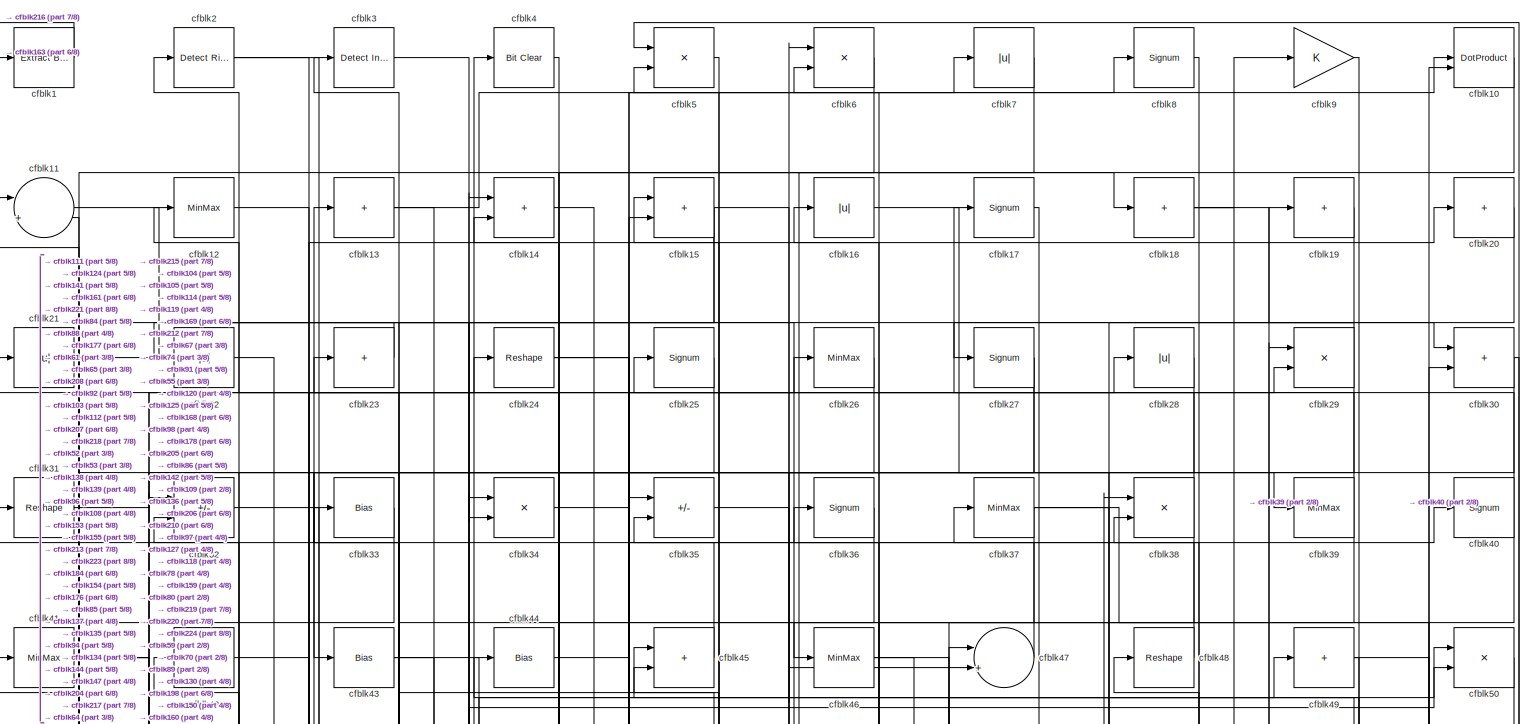
[diagram: root canvas - part 1/8, full width, top band]
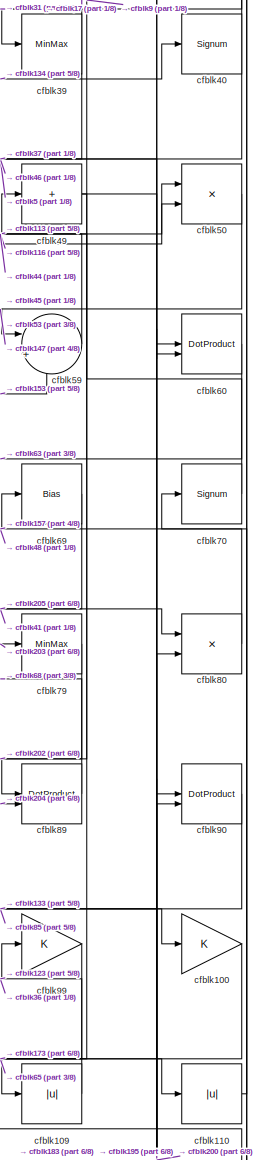
[diagram: root canvas - part 2/8, top right region]
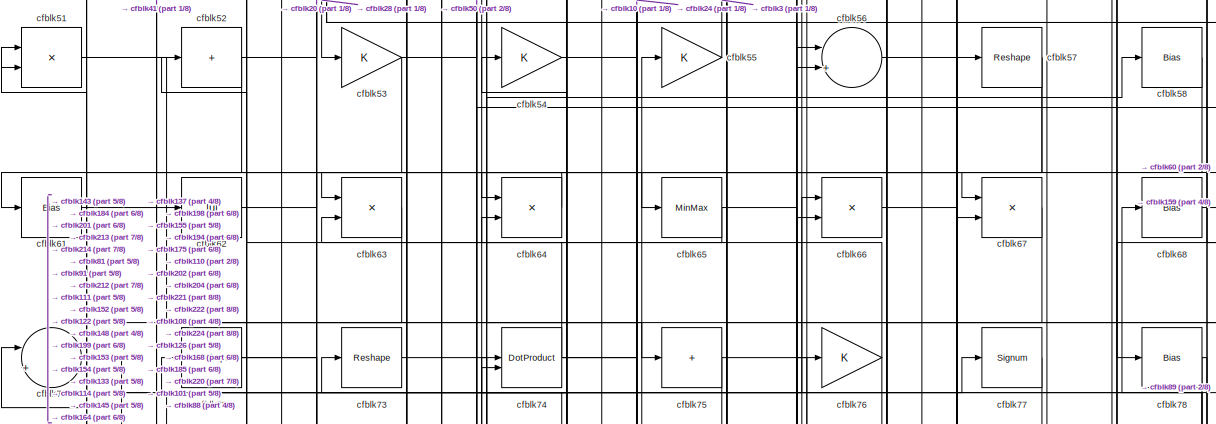
[diagram: root canvas - part 3/8, full width, top band]
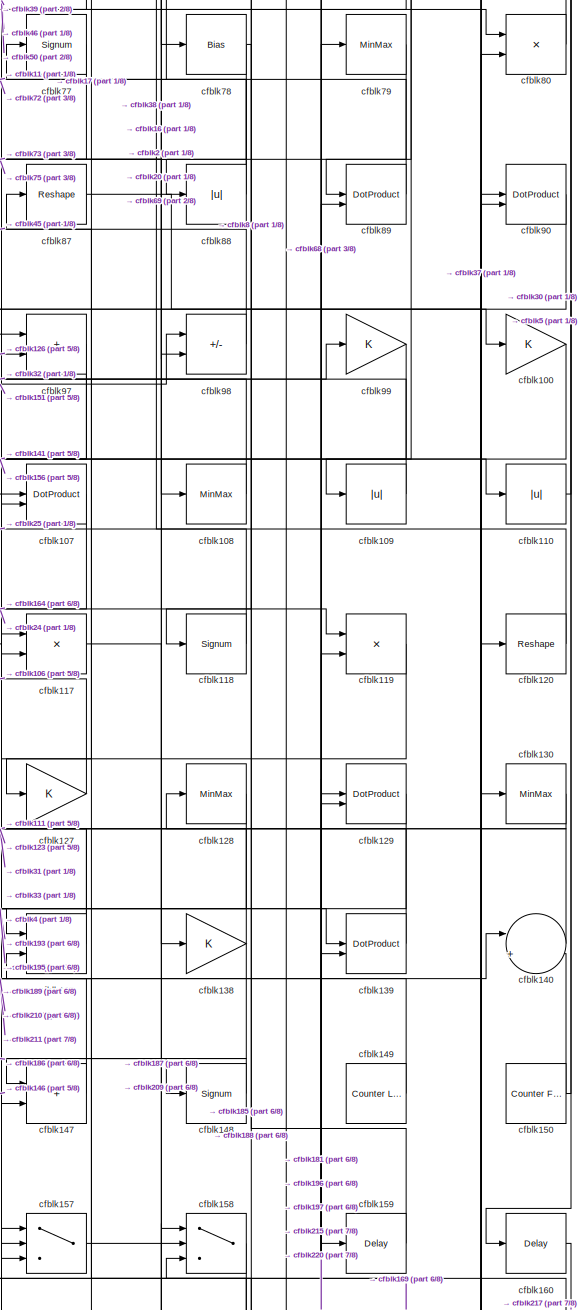
[diagram: root canvas - part 4/8, middle right region]
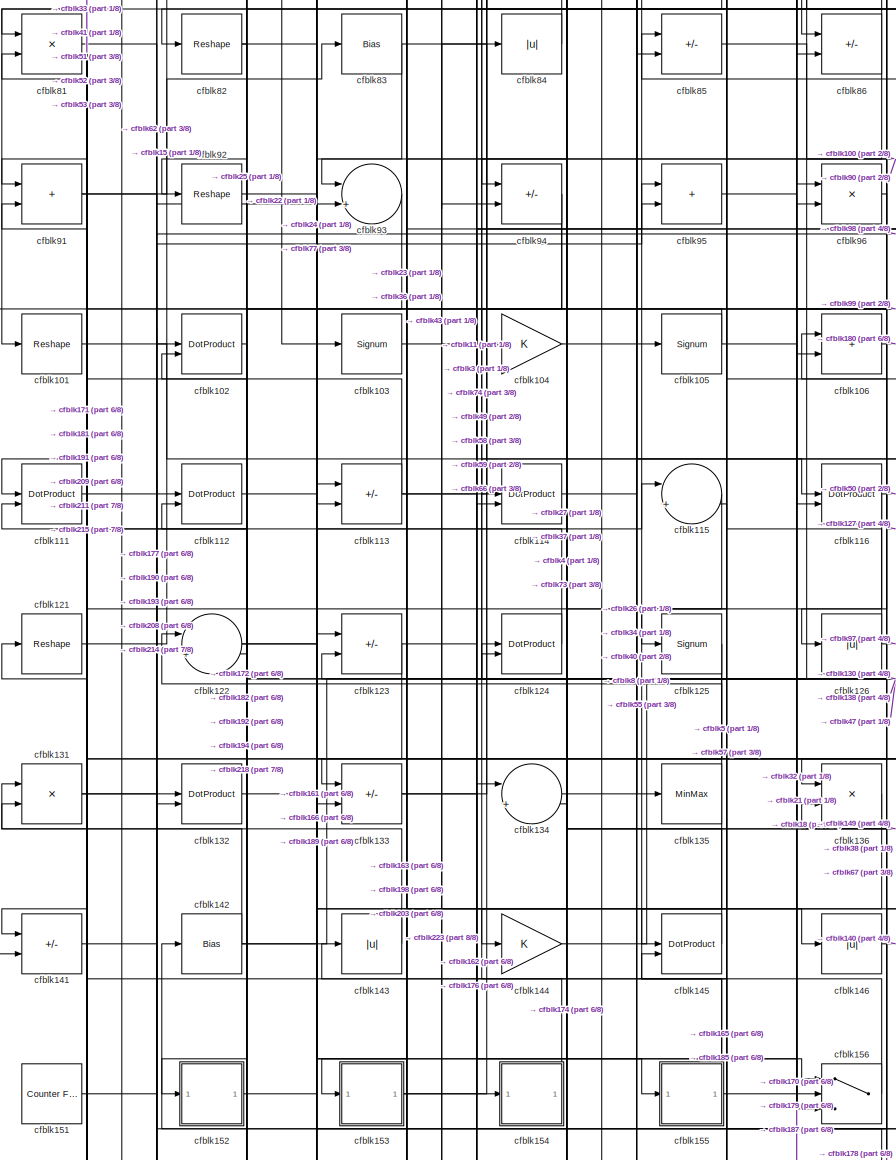
[diagram: root canvas - part 5/8, middle left region]
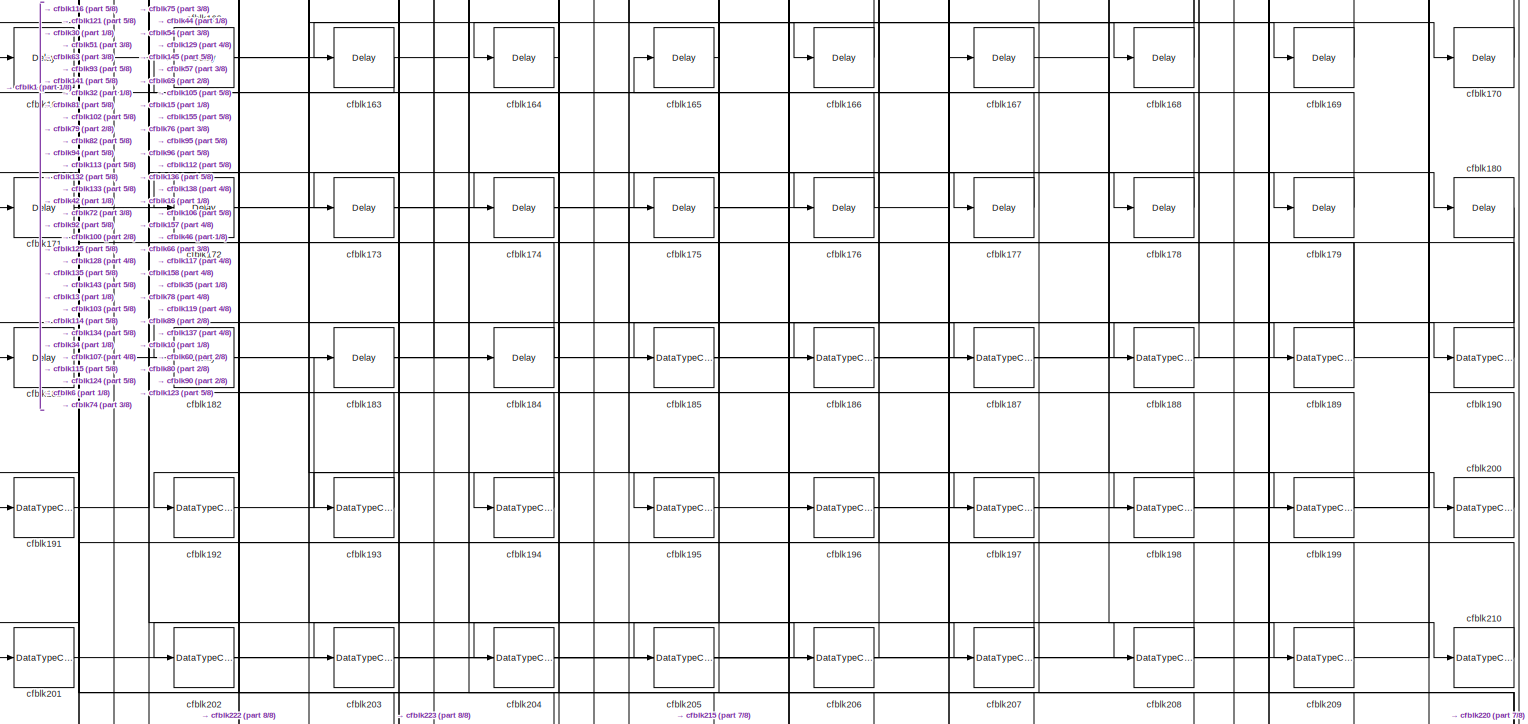
[diagram: root canvas - part 6/8, full width, bottom band]
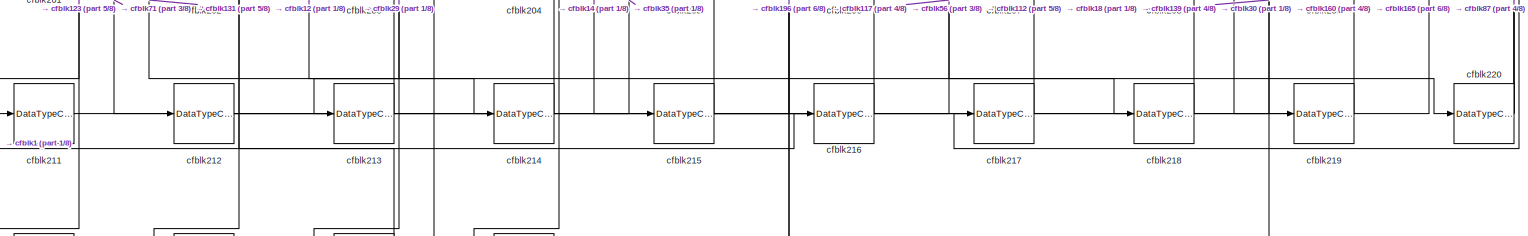
[diagram: root canvas - part 7/8, full width, bottom band]
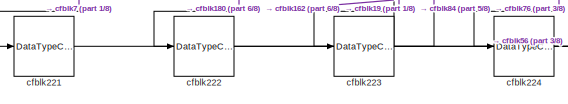
[diagram: root canvas - part 8/8, bottom left region]
MODEL slx_e23add30b6ca
KIND model
CONFIG AbsTol = auto
CONFIG EnableMultiTasking = off
CONFIG FixedStep = auto
CONFIG MaxStep = auto
CONFIG MinStep = auto
CONFIG RelTol = 1e-3
CONFIG SampleTimeConstraint = Unconstrained
CONFIG SolverName = VariableStepAuto
CONFIG StartTime = 0.0
CONFIG StopTime = 10.0
BLOCK [Reference] cfblk1  REF=simulink/Logic and Bit
Operations/Extract Bits
  LibrarySourceBlock = hdlsllib/Logic and Bit\nOperations/Extract Bits
  SourceBlock = simulink/Logic and Bit\nOperations/Extract Bits
  SourceType = Extract Bits
BLOCK [DotProduct] cfblk10
  OutDataTypeStr = Inherit: Inherit via internal rule
BLOCK [Gain] cfblk100
BLOCK [Reshape] cfblk101
BLOCK [DotProduct] cfblk102
  OutDataTypeStr = Inherit: Inherit via internal rule
BLOCK [Signum] cfblk103
BLOCK [Gain] cfblk104
BLOCK [Signum] cfblk105
BLOCK [Sum] cfblk106
  IconShape = rectangular
BLOCK [DotProduct] cfblk107
  OutDataTypeStr = Inherit: Inherit via internal rule
BLOCK [MinMax] cfblk108
BLOCK [Abs] cfblk109
  SaturateOnIntegerOverflow = off
BLOCK [Sum] cfblk11
  Inputs = |++
BLOCK [Abs] cfblk110
  SaturateOnIntegerOverflow = off
BLOCK [DotProduct] cfblk111
  OutDataTypeStr = Inherit: Inherit via internal rule
BLOCK [DotProduct] cfblk112
  OutDataTypeStr = Inherit: Inherit via internal rule
BLOCK [Sum] cfblk113
  IconShape = rectangular
  Inputs = +-
BLOCK [DotProduct] cfblk114
  OutDataTypeStr = Inherit: Inherit via internal rule
BLOCK [Sum] cfblk115
  Inputs = |++
BLOCK [DotProduct] cfblk116
  OutDataTypeStr = Inherit: Inherit via internal rule
BLOCK [Product] cfblk117
  Inputs = */
  RndMeth = Zero
  SaturateOnIntegerOverflow = on
BLOCK [Signum] cfblk118
BLOCK [Product] cfblk119
  Inputs = */
  RndMeth = Zero
  SaturateOnIntegerOverflow = on
BLOCK [MinMax] cfblk12
BLOCK [Reshape] cfblk120
BLOCK [Reshape] cfblk121
BLOCK [Sum] cfblk122
  Inputs = |++
BLOCK [Sum] cfblk123
  IconShape = rectangular
  Inputs = +-
BLOCK [DotProduct] cfblk124
  OutDataTypeStr = Inherit: Inherit via internal rule
BLOCK [Signum] cfblk125
BLOCK [Abs] cfblk126
  SaturateOnIntegerOverflow = off
BLOCK [Gain] cfblk127
BLOCK [MinMax] cfblk128
BLOCK [DotProduct] cfblk129
  OutDataTypeStr = Inherit: Inherit via internal rule
BLOCK [Sum] cfblk13
  IconShape = rectangular
  Inputs = +
BLOCK [MinMax] cfblk130
BLOCK [Product] cfblk131
  Inputs = */
  RndMeth = Zero
  SaturateOnIntegerOverflow = on
BLOCK [DotProduct] cfblk132
  OutDataTypeStr = Inherit: Inherit via internal rule
BLOCK [Sum] cfblk133
  IconShape = rectangular
  Inputs = +-
BLOCK [Sum] cfblk134
  Inputs = |++
BLOCK [MinMax] cfblk135
BLOCK [Product] cfblk136
  Inputs = */
  RndMeth = Zero
  SaturateOnIntegerOverflow = on
BLOCK [Sum] cfblk137
  IconShape = rectangular
BLOCK [Gain] cfblk138
BLOCK [DotProduct] cfblk139
  OutDataTypeStr = Inherit: Inherit via internal rule
BLOCK [Sum] cfblk14
  IconShape = rectangular
BLOCK [Sum] cfblk140
  Inputs = |++
BLOCK [Sum] cfblk141
  IconShape = rectangular
  Inputs = +-
BLOCK [Bias] cfblk142
  Bias = 0.0
  SaturateOnIntegerOverflow = off
BLOCK [Abs] cfblk143
  SaturateOnIntegerOverflow = off
BLOCK [Gain] cfblk144
BLOCK [DotProduct] cfblk145
  OutDataTypeStr = Inherit: Inherit via internal rule
BLOCK [Abs] cfblk146
  SaturateOnIntegerOverflow = off
BLOCK [Sum] cfblk147
  IconShape = rectangular
BLOCK [Signum] cfblk148
BLOCK [Reference] cfblk149  REF=hdlsllib/Sources/Counter
Limited
  SourceBlock = hdlsllib/Sources/Counter\nLimited
  SourceType = Counter Limited
BLOCK [Sum] cfblk15
  IconShape = rectangular
BLOCK [Reference] cfblk150  REF=hdlsllib/Sources/Counter
Free-Running
  SourceBlock = hdlsllib/Sources/Counter\nFree-Running
  SourceType = Counter Free-Running
BLOCK [Reference] cfblk151  REF=hdlsllib/Sources/Counter
Free-Running
  SourceBlock = hdlsllib/Sources/Counter\nFree-Running
  SourceType = Counter Free-Running
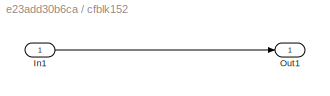
BLOCK [SubSystem] cfblk152
  LibrarySourceBlock = hdlsllib/Ports &\nSubsystems/Subsystem
BLOCK [Inport] cfblk152/In1
BLOCK [Outport] cfblk152/Out1
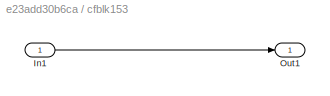
BLOCK [SubSystem] cfblk153
  LibrarySourceBlock = hdlsllib/Ports &\nSubsystems/Subsystem
BLOCK [Inport] cfblk153/In1
BLOCK [Outport] cfblk153/Out1
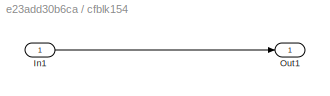
BLOCK [SubSystem] cfblk154
  LibrarySourceBlock = hdlsllib/Ports &\nSubsystems/Subsystem
BLOCK [Inport] cfblk154/In1
BLOCK [Outport] cfblk154/Out1
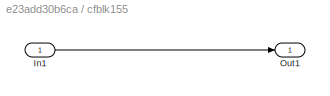
BLOCK [SubSystem] cfblk155
  LibrarySourceBlock = hdlsllib/Ports &\nSubsystems/Subsystem
BLOCK [Inport] cfblk155/In1
BLOCK [Outport] cfblk155/Out1
BLOCK [Switch] cfblk156
  InputSameDT = off
  SaturateOnIntegerOverflow = off
BLOCK [Switch] cfblk157
  InputSameDT = off
  SaturateOnIntegerOverflow = off
BLOCK [Switch] cfblk158
  InputSameDT = off
  SaturateOnIntegerOverflow = off
BLOCK [Delay] cfblk159
  InputPortMap = u0
  SampleTime = 1
BLOCK [Abs] cfblk16
  SaturateOnIntegerOverflow = off
BLOCK [Delay] cfblk160
  InputPortMap = u0
  SampleTime = 1
BLOCK [Delay] cfblk161
  InputPortMap = u0
  SampleTime = 1
BLOCK [Delay] cfblk162
  InputPortMap = u0
  SampleTime = 1
BLOCK [Delay] cfblk163
  InputPortMap = u0
  SampleTime = 1
BLOCK [Delay] cfblk164
  InputPortMap = u0
  SampleTime = 1
BLOCK [Delay] cfblk165
  InputPortMap = u0
  SampleTime = 1
BLOCK [Delay] cfblk166
  InputPortMap = u0
  SampleTime = 1
BLOCK [Delay] cfblk167
  InputPortMap = u0
  SampleTime = 1
BLOCK [Delay] cfblk168
  InputPortMap = u0
  SampleTime = 1
BLOCK [Delay] cfblk169
  InputPortMap = u0
  SampleTime = 1
BLOCK [Signum] cfblk17
BLOCK [Delay] cfblk170
  InputPortMap = u0
  SampleTime = 1
BLOCK [Delay] cfblk171
  InputPortMap = u0
  SampleTime = 1
BLOCK [Delay] cfblk172
  InputPortMap = u0
  SampleTime = 1
BLOCK [Delay] cfblk173
  InputPortMap = u0
  SampleTime = 1
BLOCK [Delay] cfblk174
  InputPortMap = u0
  SampleTime = 1
BLOCK [Delay] cfblk175
  InputPortMap = u0
  SampleTime = 1
BLOCK [Delay] cfblk176
  InputPortMap = u0
  SampleTime = 1
BLOCK [Delay] cfblk177
  InputPortMap = u0
  SampleTime = 1
BLOCK [Delay] cfblk178
  InputPortMap = u0
  SampleTime = 1
BLOCK [Delay] cfblk179
  InputPortMap = u0
  SampleTime = 1
BLOCK [Sum] cfblk18
  IconShape = rectangular
  Inputs = +
BLOCK [Delay] cfblk180
  InputPortMap = u0
  SampleTime = 1
BLOCK [Delay] cfblk181
  InputPortMap = u0
  SampleTime = 1
BLOCK [Delay] cfblk182
  InputPortMap = u0
  SampleTime = 1
BLOCK [Delay] cfblk183
  InputPortMap = u0
  SampleTime = 1
BLOCK [Delay] cfblk184
  InputPortMap = u0
  SampleTime = 1
BLOCK [DataTypeConversion] cfblk185
  RndMeth = Floor
  SaturateOnIntegerOverflow = off
BLOCK [DataTypeConversion] cfblk186
  OutDataTypeStr = uint8
  RndMeth = Floor
  SaturateOnIntegerOverflow = off
BLOCK [DataTypeConversion] cfblk187
  OutDataTypeStr = uint8
  RndMeth = Floor
  SaturateOnIntegerOverflow = off
BLOCK [DataTypeConversion] cfblk188
  OutDataTypeStr = uint8
  RndMeth = Floor
  SaturateOnIntegerOverflow = off
BLOCK [DataTypeConversion] cfblk189
  RndMeth = Floor
  SaturateOnIntegerOverflow = off
BLOCK [Sum] cfblk19
  IconShape = rectangular
  Inputs = +
BLOCK [DataTypeConversion] cfblk190
  OutDataTypeStr = uint8
  RndMeth = Floor
  SaturateOnIntegerOverflow = off
BLOCK [DataTypeConversion] cfblk191
  OutDataTypeStr = uint8
  RndMeth = Floor
  SaturateOnIntegerOverflow = off
BLOCK [DataTypeConversion] cfblk192
  OutDataTypeStr = uint8
  RndMeth = Floor
  SaturateOnIntegerOverflow = off
BLOCK [DataTypeConversion] cfblk193
  OutDataTypeStr = uint8
  RndMeth = Floor
  SaturateOnIntegerOverflow = off
BLOCK [DataTypeConversion] cfblk194
  OutDataTypeStr = uint8
  RndMeth = Floor
  SaturateOnIntegerOverflow = off
BLOCK [DataTypeConversion] cfblk195
  OutDataTypeStr = uint8
  RndMeth = Floor
  SaturateOnIntegerOverflow = off
BLOCK [DataTypeConversion] cfblk196
  OutDataTypeStr = uint8
  RndMeth = Floor
  SaturateOnIntegerOverflow = off
BLOCK [DataTypeConversion] cfblk197
  OutDataTypeStr = uint8
  RndMeth = Floor
  SaturateOnIntegerOverflow = off
BLOCK [DataTypeConversion] cfblk198
  RndMeth = Floor
  SaturateOnIntegerOverflow = off
BLOCK [DataTypeConversion] cfblk199
  OutDataTypeStr = uint8
  RndMeth = Floor
  SaturateOnIntegerOverflow = off
BLOCK [Reference] cfblk2  REF=hdlsllib/Logic and Bit
Operations/Detect Rise
Positive
  SourceBlock = hdlsllib/Logic and Bit\nOperations/Detect Rise\nPositive
  SourceType = Detect Rise Positive
BLOCK [Sum] cfblk20
  IconShape = rectangular
  Inputs = +
BLOCK [DataTypeConversion] cfblk200
  OutDataTypeStr = uint8
  RndMeth = Floor
  SaturateOnIntegerOverflow = off
BLOCK [DataTypeConversion] cfblk201
  OutDataTypeStr = uint8
  RndMeth = Floor
  SaturateOnIntegerOverflow = off
BLOCK [DataTypeConversion] cfblk202
  RndMeth = Floor
  SaturateOnIntegerOverflow = off
BLOCK [DataTypeConversion] cfblk203
  OutDataTypeStr = uint8
  RndMeth = Floor
  SaturateOnIntegerOverflow = off
BLOCK [DataTypeConversion] cfblk204
  RndMeth = Floor
  SaturateOnIntegerOverflow = off
BLOCK [DataTypeConversion] cfblk205
  OutDataTypeStr = uint8
  RndMeth = Floor
  SaturateOnIntegerOverflow = off
BLOCK [DataTypeConversion] cfblk206
  OutDataTypeStr = uint8
  RndMeth = Floor
  SaturateOnIntegerOverflow = off
BLOCK [DataTypeConversion] cfblk207
  OutDataTypeStr = uint8
  RndMeth = Floor
  SaturateOnIntegerOverflow = off
BLOCK [DataTypeConversion] cfblk208
  OutDataTypeStr = uint8
  RndMeth = Floor
  SaturateOnIntegerOverflow = off
BLOCK [DataTypeConversion] cfblk209
  OutDataTypeStr = uint8
  RndMeth = Floor
  SaturateOnIntegerOverflow = off
BLOCK [Abs] cfblk21
  SaturateOnIntegerOverflow = off
BLOCK [DataTypeConversion] cfblk210
  OutDataTypeStr = uint8
  RndMeth = Floor
  SaturateOnIntegerOverflow = off
BLOCK [DataTypeConversion] cfblk211
  OutDataTypeStr = uint8
  RndMeth = Floor
  SaturateOnIntegerOverflow = off
BLOCK [DataTypeConversion] cfblk212
  RndMeth = Floor
  SaturateOnIntegerOverflow = off
BLOCK [DataTypeConversion] cfblk213
  OutDataTypeStr = uint8
  RndMeth = Floor
  SaturateOnIntegerOverflow = off
BLOCK [DataTypeConversion] cfblk214
  OutDataTypeStr = uint8
  RndMeth = Floor
  SaturateOnIntegerOverflow = off
BLOCK [DataTypeConversion] cfblk215
  RndMeth = Floor
  SaturateOnIntegerOverflow = off
BLOCK [DataTypeConversion] cfblk216
  OutDataTypeStr = uint8
  RndMeth = Floor
  SaturateOnIntegerOverflow = off
BLOCK [DataTypeConversion] cfblk217
  OutDataTypeStr = uint8
  RndMeth = Floor
  SaturateOnIntegerOverflow = off
BLOCK [DataTypeConversion] cfblk218
  OutDataTypeStr = uint8
  RndMeth = Floor
  SaturateOnIntegerOverflow = off
BLOCK [DataTypeConversion] cfblk219
  OutDataTypeStr = uint8
  RndMeth = Floor
  SaturateOnIntegerOverflow = off
BLOCK [Abs] cfblk22
  SaturateOnIntegerOverflow = off
BLOCK [DataTypeConversion] cfblk220
  RndMeth = Floor
  SaturateOnIntegerOverflow = off
BLOCK [DataTypeConversion] cfblk221
  OutDataTypeStr = uint8
  RndMeth = Floor
  SaturateOnIntegerOverflow = off
BLOCK [DataTypeConversion] cfblk222
  OutDataTypeStr = uint8
  RndMeth = Floor
  SaturateOnIntegerOverflow = off
BLOCK [DataTypeConversion] cfblk223
  RndMeth = Floor
  SaturateOnIntegerOverflow = off
BLOCK [DataTypeConversion] cfblk224
  OutDataTypeStr = uint8
  RndMeth = Floor
  SaturateOnIntegerOverflow = off
BLOCK [Sum] cfblk23
  IconShape = rectangular
  Inputs = +
BLOCK [Reshape] cfblk24
BLOCK [Signum] cfblk25
BLOCK [MinMax] cfblk26
BLOCK [Signum] cfblk27
BLOCK [Abs] cfblk28
  SaturateOnIntegerOverflow = off
BLOCK [Product] cfblk29
  Inputs = */
  RndMeth = Zero
  SaturateOnIntegerOverflow = on
BLOCK [Reference] cfblk3  REF=simulink/Logic and Bit
Operations/Detect
Increase
  LibrarySourceBlock = hdlsllib/Logic and Bit\nOperations/Detect\nIncrease
  SourceBlock = simulink/Logic and Bit\nOperations/Detect\nIncrease
  SourceType = Detect Increase
BLOCK [Sum] cfblk30
  IconShape = rectangular
BLOCK [Reshape] cfblk31
BLOCK [Sum] cfblk32
  IconShape = rectangular
  Inputs = +-
BLOCK [Bias] cfblk33
  Bias = 0.0
  SaturateOnIntegerOverflow = off
BLOCK [Product] cfblk34
  Inputs = */
  RndMeth = Zero
  SaturateOnIntegerOverflow = on
BLOCK [Sum] cfblk35
  IconShape = rectangular
  Inputs = +-
BLOCK [Signum] cfblk36
BLOCK [MinMax] cfblk37
BLOCK [Product] cfblk38
  Inputs = */
  RndMeth = Zero
  SaturateOnIntegerOverflow = on
BLOCK [MinMax] cfblk39
BLOCK [Reference] cfblk4  REF=simulink/Logic and Bit
Operations/Bit Clear
  LibrarySourceBlock = hdlsllib/Logic and Bit\nOperations/Bit Clear
  SourceBlock = simulink/Logic and Bit\nOperations/Bit Clear
  SourceType = Bit Clear
BLOCK [Signum] cfblk40
BLOCK [MinMax] cfblk41
BLOCK [Sum] cfblk42
  IconShape = rectangular
  Inputs = +
BLOCK [Bias] cfblk43
  Bias = 0.0
  SaturateOnIntegerOverflow = off
BLOCK [Bias] cfblk44
  Bias = 0.0
  SaturateOnIntegerOverflow = off
BLOCK [Sum] cfblk45
  IconShape = rectangular
BLOCK [MinMax] cfblk46
BLOCK [Sum] cfblk47
  Inputs = |++
BLOCK [Reshape] cfblk48
BLOCK [Sum] cfblk49
  IconShape = rectangular
  Inputs = +
BLOCK [Product] cfblk5
  Inputs = */
  RndMeth = Zero
  SaturateOnIntegerOverflow = on
BLOCK [Product] cfblk50
  Inputs = */
  RndMeth = Zero
  SaturateOnIntegerOverflow = on
BLOCK [Product] cfblk51
  Inputs = */
  RndMeth = Zero
  SaturateOnIntegerOverflow = on
BLOCK [Sum] cfblk52
  IconShape = rectangular
  Inputs = +
BLOCK [Gain] cfblk53
BLOCK [Gain] cfblk54
BLOCK [Gain] cfblk55
BLOCK [Sum] cfblk56
  Inputs = |++
BLOCK [Reshape] cfblk57
BLOCK [Bias] cfblk58
  Bias = 0.0
  SaturateOnIntegerOverflow = off
BLOCK [Sum] cfblk59
  Inputs = |++
BLOCK [Product] cfblk6
  Inputs = */
  RndMeth = Zero
  SaturateOnIntegerOverflow = on
BLOCK [DotProduct] cfblk60
  OutDataTypeStr = Inherit: Inherit via internal rule
BLOCK [Bias] cfblk61
  Bias = 0.0
  SaturateOnIntegerOverflow = off
BLOCK [Abs] cfblk62
  SaturateOnIntegerOverflow = off
BLOCK [Product] cfblk63
  Inputs = */
  RndMeth = Zero
  SaturateOnIntegerOverflow = on
BLOCK [Product] cfblk64
  Inputs = */
  RndMeth = Zero
  SaturateOnIntegerOverflow = on
BLOCK [MinMax] cfblk65
BLOCK [Product] cfblk66
  Inputs = */
  RndMeth = Zero
  SaturateOnIntegerOverflow = on
BLOCK [Product] cfblk67
  Inputs = */
  RndMeth = Zero
  SaturateOnIntegerOverflow = on
BLOCK [Bias] cfblk68
  Bias = 0.0
  SaturateOnIntegerOverflow = off
BLOCK [Bias] cfblk69
  Bias = 0.0
  SaturateOnIntegerOverflow = off
BLOCK [Abs] cfblk7
  SaturateOnIntegerOverflow = off
BLOCK [Signum] cfblk70
BLOCK [Sum] cfblk71
  Inputs = |++
BLOCK [Reshape] cfblk72
BLOCK [Reshape] cfblk73
BLOCK [DotProduct] cfblk74
  OutDataTypeStr = Inherit: Inherit via internal rule
BLOCK [Sum] cfblk75
  IconShape = rectangular
  Inputs = +
BLOCK [Gain] cfblk76
BLOCK [Signum] cfblk77
BLOCK [Bias] cfblk78
  Bias = 0.0
  SaturateOnIntegerOverflow = off
BLOCK [MinMax] cfblk79
BLOCK [Signum] cfblk8
BLOCK [Product] cfblk80
  Inputs = */
  RndMeth = Zero
  SaturateOnIntegerOverflow = on
BLOCK [Product] cfblk81
  Inputs = */
  RndMeth = Zero
  SaturateOnIntegerOverflow = on
BLOCK [Reshape] cfblk82
BLOCK [Bias] cfblk83
  Bias = 0.0
  SaturateOnIntegerOverflow = off
BLOCK [Abs] cfblk84
  SaturateOnIntegerOverflow = off
BLOCK [Sum] cfblk85
  IconShape = rectangular
  Inputs = +-
BLOCK [Sum] cfblk86
  IconShape = rectangular
  Inputs = +-
BLOCK [Reshape] cfblk87
BLOCK [Abs] cfblk88
  SaturateOnIntegerOverflow = off
BLOCK [DotProduct] cfblk89
  OutDataTypeStr = Inherit: Inherit via internal rule
BLOCK [Gain] cfblk9
BLOCK [DotProduct] cfblk90
  OutDataTypeStr = Inherit: Inherit via internal rule
BLOCK [Sum] cfblk91
  IconShape = rectangular
BLOCK [Reshape] cfblk92
BLOCK [Sum] cfblk93
  Inputs = |++
BLOCK [Sum] cfblk94
  IconShape = rectangular
  Inputs = +-
BLOCK [Sum] cfblk95
  IconShape = rectangular
BLOCK [Product] cfblk96
  Inputs = */
  RndMeth = Zero
  SaturateOnIntegerOverflow = on
BLOCK [Sum] cfblk97
  IconShape = rectangular
BLOCK [Sum] cfblk98
  IconShape = rectangular
  Inputs = +-
BLOCK [Gain] cfblk99
LINE cfblk100:1 -> cfblk173:1
LINE cfblk101:1 -> cfblk116:1
LINE cfblk102:1 -> cfblk192:1
LINE cfblk103:1 -> cfblk176:1
LINE cfblk104:1 -> cfblk26:1
NET cfblk105:1 -> cfblk104:1, cfblk170:1
LINE cfblk106:1 -> cfblk180:1
LINE cfblk107:1 -> cfblk164:1
LINE cfblk108:1 -> cfblk32:2
LINE cfblk109:1 -> cfblk36:1
LINE cfblk10:1 -> cfblk64:1
LINE cfblk110:1 -> cfblk70:1
LINE cfblk111:1 -> cfblk62:1
LINE cfblk112:1 -> cfblk24:1
NET cfblk113:1 -> cfblk49:1, cfblk91:2, cfblk95:2
LINE cfblk114:1 -> cfblk8:1
LINE cfblk115:1 -> cfblk174:1
NET cfblk116:1 -> cfblk181:1, cfblk50:1
LINE cfblk117:1 -> cfblk209:1
LINE cfblk118:1 -> cfblk38:1
LINE cfblk119:1 -> cfblk157:2
LINE cfblk11:1 -> cfblk154:1
LINE cfblk120:1 -> cfblk25:1
LINE cfblk121:1 -> cfblk83:1
NET cfblk122:1 -> cfblk146:1, cfblk77:1
NET cfblk123:1 -> cfblk211:1, cfblk99:1
LINE cfblk124:1 -> cfblk41:1
NET cfblk125:1 -> cfblk163:1, cfblk191:1
NET cfblk126:1 -> cfblk85:1, cfblk97:2
LINE cfblk127:1 -> cfblk106:1
LINE cfblk128:1 -> cfblk193:1
LINE cfblk129:1 -> cfblk195:1
LINE cfblk12:1 -> cfblk218:1
LINE cfblk130:1 -> cfblk123:2
NET cfblk131:1 -> cfblk214:1, cfblk95:1
LINE cfblk132:1 -> cfblk189:1
NET cfblk133:1 -> cfblk156:1, cfblk58:1
LINE cfblk134:1 -> cfblk40:1
NET cfblk135:1 -> cfblk122:1, cfblk203:1
LINE cfblk136:1 -> cfblk145:1
NET cfblk137:1 -> cfblk33:1, cfblk4:1
NET cfblk138:1 -> cfblk111:2, cfblk186:1
LINE cfblk139:1 -> cfblk31:1
NET cfblk13:1 -> cfblk184:1, cfblk7:1
LINE cfblk140:1 -> cfblk128:1
LINE cfblk141:1 -> cfblk177:1
NET cfblk142:1 -> cfblk131:1, cfblk156:2, cfblk18:1
LINE cfblk143:1 -> cfblk51:1
LINE cfblk144:1 -> cfblk47:1
LINE cfblk145:1 -> cfblk73:1
LINE cfblk146:1 -> cfblk140:1
LINE cfblk147:1 -> cfblk21:1
LINE cfblk148:1 -> cfblk147:1
LINE cfblk149:1 -> cfblk124:1
LINE cfblk14:1 -> cfblk215:1
NET cfblk150:1 -> cfblk140:2, cfblk5:1
LINE cfblk151:1 -> cfblk98:1
LINE cfblk152/In1:1 -> cfblk152/Out1:1
LINE cfblk152:1 -> cfblk115:1
LINE cfblk153/In1:1 -> cfblk153/Out1:1
NET cfblk153:1 -> cfblk59:2, cfblk66:1
LINE cfblk154/In1:1 -> cfblk154/Out1:1
LINE cfblk154:1 -> cfblk74:1
LINE cfblk155/In1:1 -> cfblk155/Out1:1
NET cfblk155:1 -> cfblk187:1, cfblk23:1, cfblk55:1
LINE cfblk156:1 -> cfblk81:2
LINE cfblk157:1 -> cfblk69:1
LINE cfblk158:1 -> cfblk185:1
LINE cfblk159:1 -> cfblk38:2
NET cfblk15:1 -> cfblk111:1, cfblk178:1, cfblk34:2
LINE cfblk160:1 -> cfblk217:1
LINE cfblk161:1 -> cfblk133:2
LINE cfblk162:1 -> cfblk114:2
LINE cfblk163:1 -> cfblk1:1
LINE cfblk164:1 -> cfblk74:2
LINE cfblk165:1 -> cfblk145:2
LINE cfblk166:1 -> cfblk112:1
LINE cfblk167:1 -> cfblk200:1
LINE cfblk168:1 -> cfblk35:2
LINE cfblk169:1 -> cfblk137:2
LINE cfblk16:1 -> cfblk78:1
LINE cfblk170:1 -> cfblk123:1
LINE cfblk171:1 -> cfblk157:1
LINE cfblk172:1 -> cfblk96:2
LINE cfblk173:1 -> cfblk206:1
LINE cfblk174:1 -> cfblk190:1
LINE cfblk175:1 -> cfblk197:1
LINE cfblk176:1 -> cfblk34:1
LINE cfblk177:1 -> cfblk32:1
LINE cfblk178:1 -> cfblk136:2
LINE cfblk179:1 -> cfblk113:1
LINE cfblk17:1 -> cfblk127:1
LINE cfblk180:1 -> cfblk222:1
LINE cfblk181:1 -> cfblk119:2
LINE cfblk182:1 -> cfblk134:1
LINE cfblk183:1 -> cfblk90:1
LINE cfblk184:1 -> cfblk51:2
NET cfblk185:1 -> cfblk115:2, cfblk57:1
LINE cfblk186:1 -> cfblk158:1
LINE cfblk187:1 -> cfblk158:2
LINE cfblk188:1 -> cfblk158:3
NET cfblk189:1 -> cfblk107:1, cfblk124:2
NET cfblk18:1 -> cfblk219:1, cfblk30:1, cfblk9:1
LINE cfblk190:1 -> cfblk132:1
LINE cfblk191:1 -> cfblk132:2
LINE cfblk192:1 -> cfblk183:1
LINE cfblk193:1 -> cfblk102:1
LINE cfblk194:1 -> cfblk102:2
LINE cfblk195:1 -> cfblk90:2
LINE cfblk196:1 -> cfblk129:1
LINE cfblk197:1 -> cfblk129:2
NET cfblk198:1 -> cfblk10:2, cfblk143:1
LINE cfblk199:1 -> cfblk54:1
LINE cfblk19:1 -> cfblk223:1
LINE cfblk1:1 -> cfblk216:1
LINE cfblk200:1 -> cfblk60:1
LINE cfblk201:1 -> cfblk167:1
NET cfblk202:1 -> cfblk66:2, cfblk80:2
LINE cfblk203:1 -> cfblk79:1
NET cfblk204:1 -> cfblk76:1, cfblk89:2
LINE cfblk205:1 -> cfblk6:1
LINE cfblk206:1 -> cfblk6:2
LINE cfblk207:1 -> cfblk16:1
LINE cfblk208:1 -> cfblk42:1
LINE cfblk209:1 -> cfblk121:1
LINE cfblk20:1 -> cfblk98:2
LINE cfblk210:1 -> cfblk117:1
LINE cfblk211:1 -> cfblk117:2
NET cfblk212:1 -> cfblk30:2, cfblk35:1
LINE cfblk213:1 -> cfblk71:1
LINE cfblk214:1 -> cfblk71:2
NET cfblk215:1 -> cfblk131:2, cfblk139:2, cfblk196:1
LINE cfblk216:1 -> cfblk14:1
LINE cfblk217:1 -> cfblk14:2
LINE cfblk218:1 -> cfblk112:2
LINE cfblk219:1 -> cfblk12:1
LINE cfblk21:1 -> cfblk86:1
NET cfblk220:1 -> cfblk165:1, cfblk29:1, cfblk87:1
LINE cfblk221:1 -> cfblk56:1
LINE cfblk222:1 -> cfblk56:2
NET cfblk223:1 -> cfblk162:1, cfblk84:1
LINE cfblk224:1 -> cfblk19:1
LINE cfblk22:1 -> cfblk103:1
LINE cfblk23:1 -> cfblk22:1
NET cfblk24:1 -> cfblk119:1, cfblk67:2
LINE cfblk25:1 -> cfblk92:1
LINE cfblk26:1 -> cfblk86:2
NET cfblk27:1 -> cfblk144:1, cfblk43:1
LINE cfblk28:1 -> cfblk53:1
NET cfblk29:1 -> cfblk213:1, cfblk27:1
NET cfblk2:1 -> cfblk138:1, cfblk139:1
NET cfblk30:1 -> cfblk160:1, cfblk161:1
LINE cfblk31:1 -> cfblk39:1
LINE cfblk32:1 -> cfblk96:1
LINE cfblk33:1 -> cfblk141:1
LINE cfblk34:1 -> cfblk105:1
LINE cfblk35:1 -> cfblk47:2
LINE cfblk36:1 -> cfblk153:1
NET cfblk37:1 -> cfblk130:1, cfblk59:1, cfblk94:1
NET cfblk38:1 -> cfblk136:1, cfblk2:1
NET cfblk39:1 -> cfblk157:3, cfblk17:1
LINE cfblk3:1 -> cfblk85:2
NET cfblk40:1 -> cfblk46:1, cfblk5:2
NET cfblk41:1 -> cfblk29:2, cfblk65:1, cfblk80:1
LINE cfblk42:1 -> cfblk207:1
NET cfblk43:1 -> cfblk135:1, cfblk94:2
LINE cfblk44:1 -> cfblk169:1
LINE cfblk45:1 -> cfblk13:1
NET cfblk46:1 -> cfblk210:1, cfblk97:1
LINE cfblk47:1 -> cfblk37:1
LINE cfblk48:1 -> cfblk15:1
NET cfblk49:1 -> cfblk109:1, cfblk60:2
LINE cfblk4:1 -> cfblk134:2
LINE cfblk50:1 -> cfblk147:2
LINE cfblk51:1 -> cfblk75:1
NET cfblk52:1 -> cfblk20:1, cfblk81:1
NET cfblk53:1 -> cfblk50:2, cfblk91:1
LINE cfblk54:1 -> cfblk198:1
LINE cfblk55:1 -> cfblk3:1
LINE cfblk56:1 -> cfblk220:1
NET cfblk57:1 -> cfblk152:1, cfblk175:1
LINE cfblk58:1 -> cfblk114:1
LINE cfblk59:1 -> cfblk44:1
LINE cfblk5:1 -> cfblk125:1
LINE cfblk60:1 -> cfblk63:1
LINE cfblk61:1 -> cfblk28:1
LINE cfblk62:1 -> cfblk67:1
LINE cfblk63:1 -> cfblk201:1
LINE cfblk64:1 -> cfblk61:1
NET cfblk65:1 -> cfblk110:1, cfblk63:2
LINE cfblk66:1 -> cfblk168:1
LINE cfblk67:1 -> cfblk126:1
LINE cfblk68:1 -> cfblk159:1
LINE cfblk69:1 -> cfblk205:1
LINE cfblk6:1 -> cfblk204:1
LINE cfblk70:1 -> cfblk45:1
LINE cfblk71:1 -> cfblk212:1
NET cfblk72:1 -> cfblk148:1, cfblk199:1
LINE cfblk73:1 -> cfblk88:1
NET cfblk74:1 -> cfblk10:1, cfblk137:1, cfblk52:1
NET cfblk75:1 -> cfblk108:1, cfblk194:1
NET cfblk76:1 -> cfblk224:1, cfblk64:2
LINE cfblk77:1 -> cfblk101:1
NET cfblk78:1 -> cfblk107:2, cfblk188:1
LINE cfblk79:1 -> cfblk202:1
LINE cfblk7:1 -> cfblk221:1
LINE cfblk80:1 -> cfblk48:1
LINE cfblk81:1 -> cfblk208:1
NET cfblk82:1 -> cfblk155:1, cfblk172:1
NET cfblk83:1 -> cfblk106:2, cfblk113:2
LINE cfblk84:1 -> cfblk11:1
LINE cfblk85:1 -> cfblk100:1
NET cfblk86:1 -> cfblk82:1, cfblk93:1
LINE cfblk87:1 -> cfblk120:1
NET cfblk88:1 -> cfblk11:2, cfblk72:1
LINE cfblk89:1 -> cfblk68:1
LINE cfblk8:1 -> cfblk118:1
LINE cfblk90:1 -> cfblk133:1
NET cfblk91:1 -> cfblk15:2, cfblk93:2
LINE cfblk92:1 -> cfblk166:1
LINE cfblk93:1 -> cfblk171:1
NET cfblk94:1 -> cfblk122:2, cfblk182:1
LINE cfblk95:1 -> cfblk179:1
LINE cfblk96:1 -> cfblk142:1
NET cfblk97:1 -> cfblk141:2, cfblk156:3
LINE cfblk98:1 -> cfblk45:2
LINE cfblk99:1 -> cfblk116:2
LINE cfblk9:1 -> cfblk89:1
note: NET lines group one-source signal fan-out (src -> all destinations, sorted); 1:1 wires keep LINE
